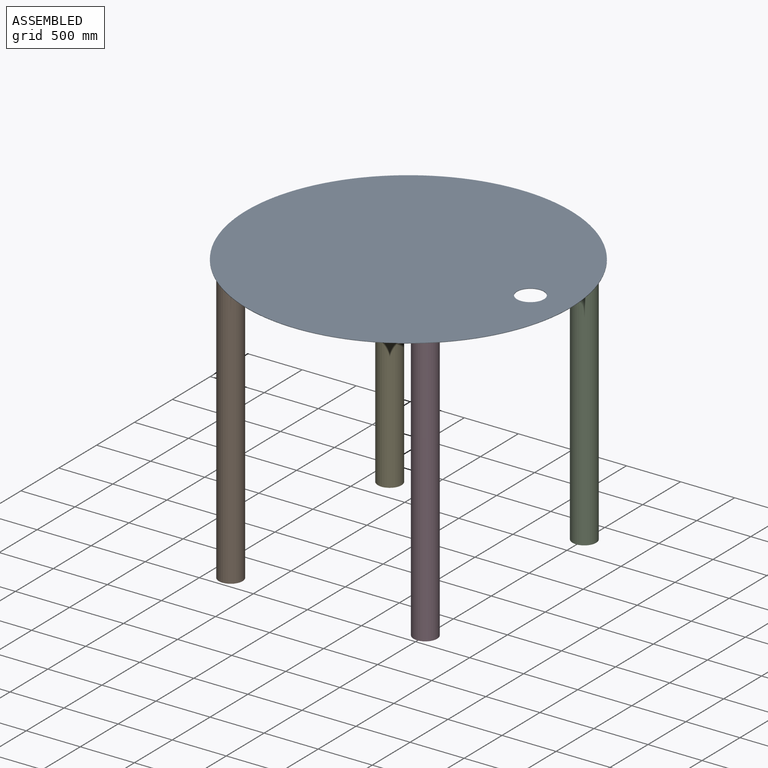
[diagram: assembled view]
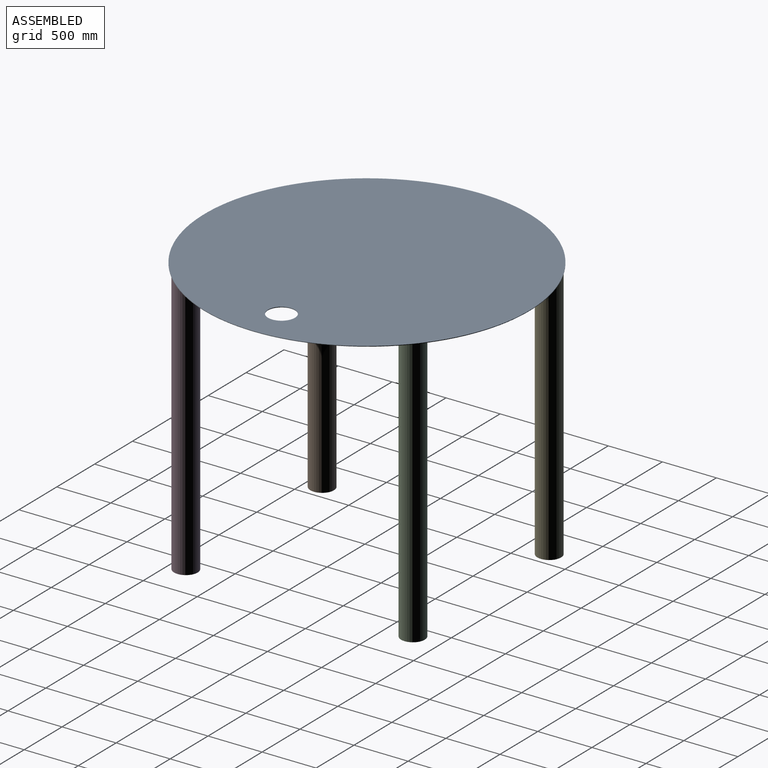
[diagram: assembled view, second angle]
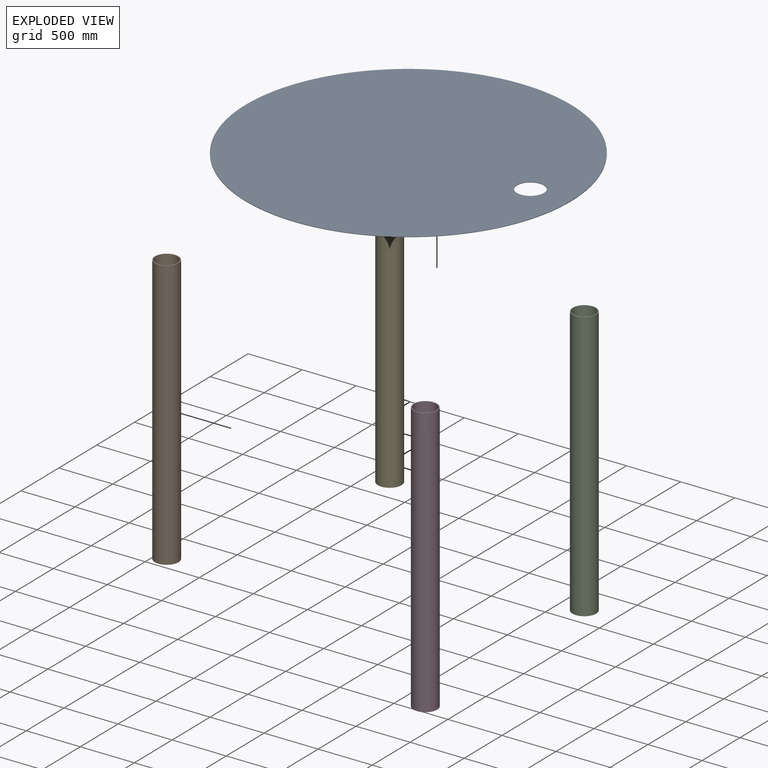
[diagram: exploded view]
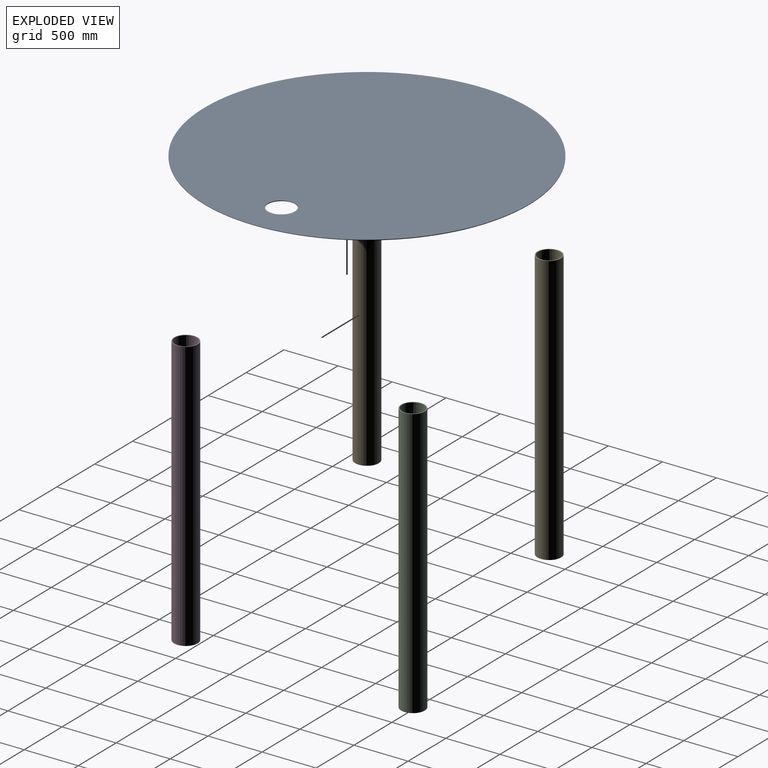
[diagram: exploded view, second angle]
ASSEMBLY  parts=5 mates=3
PART A: 4 faces, bbox 3008x3008x5 mm
  f0: cylinder r=1504mm len=3008mm, axis (0,0,-1), area 47249.6mm2, adj f1,f2
  f1: plane 3008x3008mm, normal (0,0,1), area 7057245.5mm2, adj f0,f3
  f2: plane 3008x3008mm, normal (0,0,-1), area 7057245.5mm2, adj f0,f3
  f3: cylinder r=125mm len=250mm, axis (0,0,1), area 3927mm2, adj f1,f2
PART B: 4 faces, bbox 219x219x2500 mm
  f0: cylinder r=109.5mm len=2500mm, axis (0,0,1), area 1720022mm2, adj f1,f2
  f1: plane 219x219mm, normal (0,0,-1), area 5303mm2, adj f0,f3
  f2: plane 219x219mm, normal (0,0,1), area 5303mm2, adj f0,f3
  f3: cylinder r=101.5mm len=2500mm, axis (0,0,1), area 1594358.3mm2, adj f1,f2
PART C: same geometry as B
PART D: same geometry as B
PART E: same geometry as B
PLACE A t=(-77.02,-484.35,1666.07)mm
PLACE B t=(-984.87,-1534.35,1666.07)mm
PLACE C rot(axis=(0.59,-0.2,-0.78),0deg) t=(815.13,565.65,1666.07)mm
PLACE D rot(axis=(0.59,-0.2,-0.78),0deg) t=(815.13,-1534.35,1666.07)mm
PLACE E rot(axis=(0.59,-0.2,-0.78),0deg) t=(-984.87,565.65,1666.07)mm
MATE fastened C.f0 <-> A.f2  axis (0,0,1) through (815.13,565.65,1666.07)mm
MATE fastened A.f2 <-> E.f2  axis (0,0,-1) through (-84.87,-484.35,1666.07)mm
MATE fastened D.f0 <-> A.f2  axis (0,0,1) through (815.13,-1534.35,1666.07)mm
